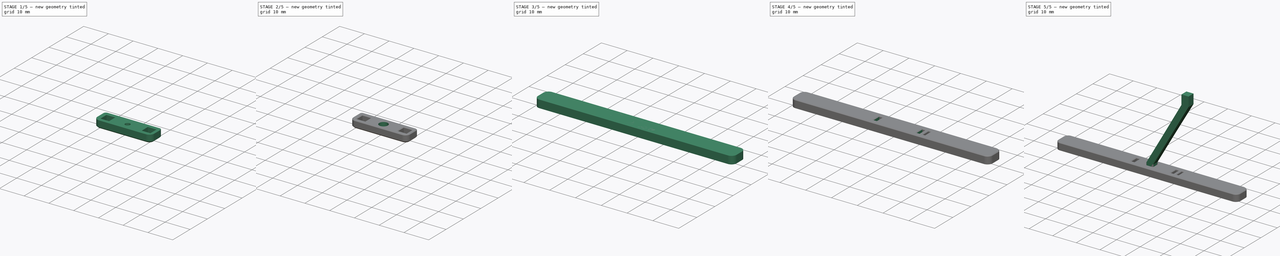
[diagram: build sequence overview — one tinted view per stage of 5, left to right]
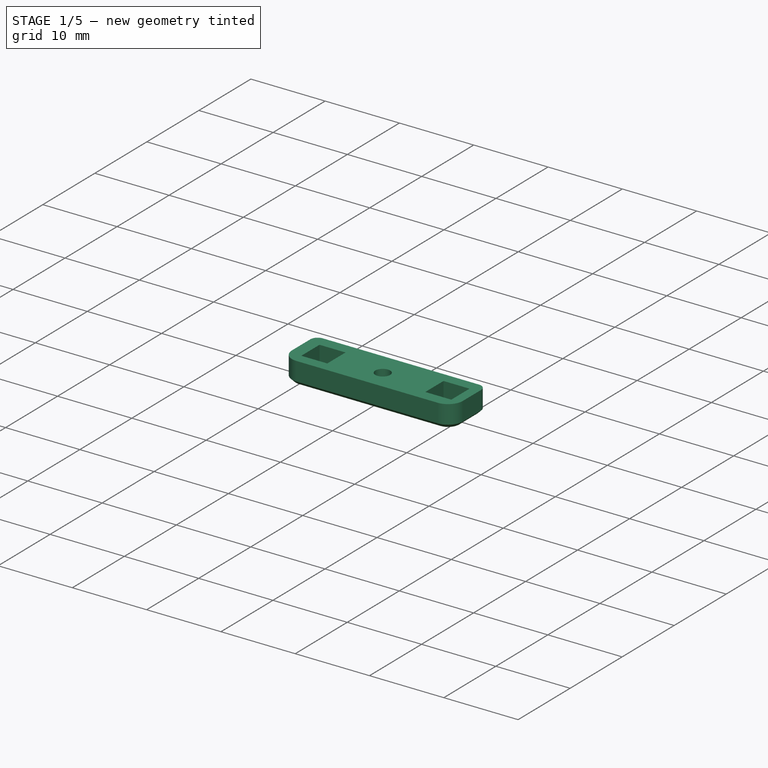
[diagram: stage 1 of 5 — iso view after this stage's code; geometry added in this stage tinted green]
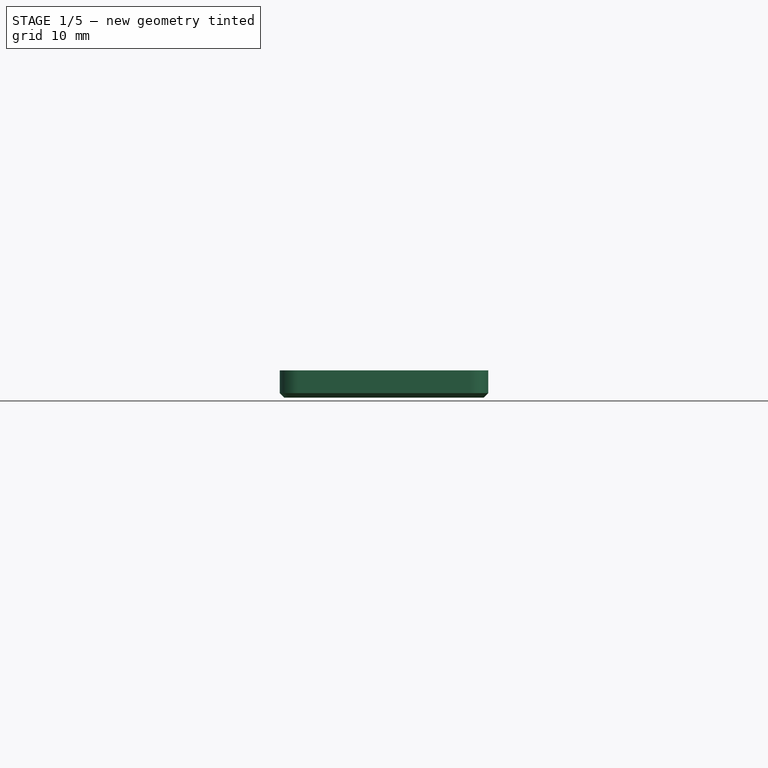
[diagram: stage 1 of 5 — front view after this stage's code; geometry added in this stage tinted green]
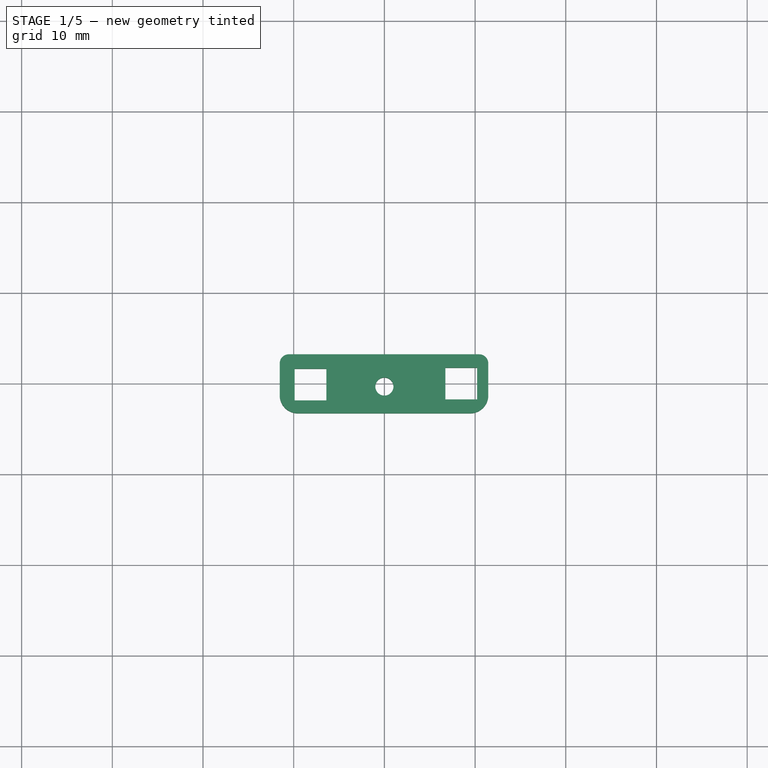
[diagram: stage 1 of 5 — top view after this stage's code; geometry added in this stage tinted green]
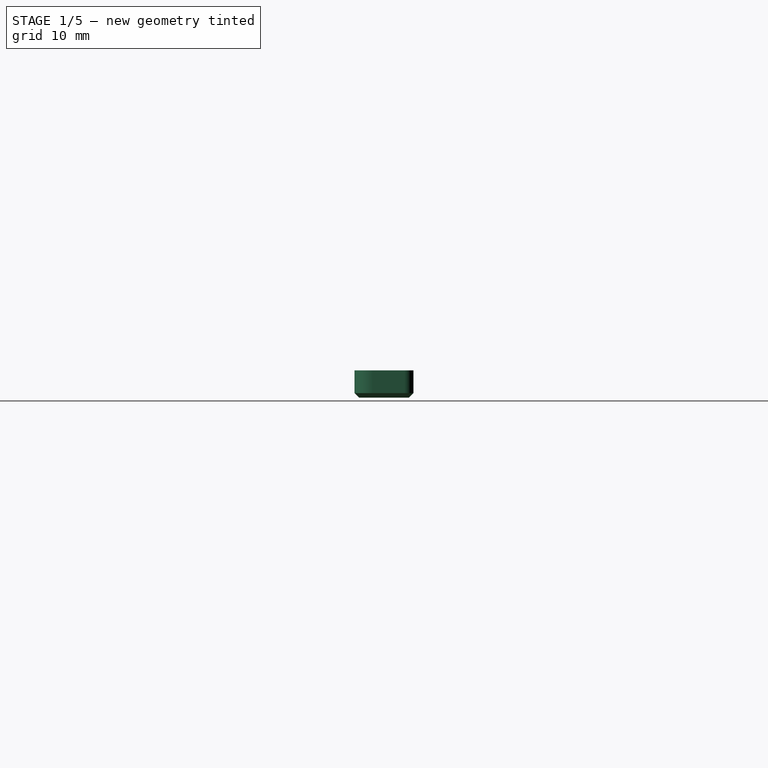
[diagram: stage 1 of 5 — right view after this stage's code; geometry added in this stage tinted green]
FCSTD DOCUMENT  (FreeCAD 0.19R23578 (Git))
Label: drone-landing-strut
License: All rights reserved
LicenseURL: http://en.wikipedia.org/wiki/All_rights_reserved
objects: PartDesign::Chamfer×10, Sketcher::SketchObject×8, PartDesign::Pad×4, PartDesign::Pocket×4, PartDesign::Body×3, PartDesign::Plane×2, App::MeasureDistance×2, PartDesign::AdditiveLoft×1
note: 51 computed .brp shape members not serialized (recipe doc carries the construction recipe); baked Part::Feature solids carry a one-line shape summary decoded from their .brp

FEATURE [PartDesign::Plane] DatumPlane
  AttachmentOffset = pos=(0,0,3) rot=(0,0,1;0rad)
  Length = 60
  MapMode = 5
  Placement = pos=(0,0,3) rot=(0,0,1;0rad)
  ResizeMode = 0
  Support = -> [XY_Plane]
  Width = 60
  expr: .Placement.Base.z = 0mm
  expr: .AttachmentOffset.Base.z = Pad.Length
FEATURE [Sketcher::SketchObject] Sketch005
  MapMode = 5
  Placement = pos=(0,0,3) rot=(0,0,1;0rad)
  Support = -> [DatumPlane]
  sketch-geometry (10):
    g0: LineSegment StartX=-9.89335 StartY=-1.85318 StartZ=0 EndX=-6.39335 EndY=-1.85318 EndZ=0
    g1: LineSegment StartX=-6.39335 StartY=-1.85318 StartZ=0 EndX=-6.39335 EndY=1.64682 EndZ=0
    g2: LineSegment StartX=-6.39335 StartY=1.64682 StartZ=0 EndX=-9.89335 EndY=1.64682 EndZ=0
    g3: LineSegment StartX=-9.89335 StartY=1.64682 StartZ=0 EndX=-9.89335 EndY=-1.85318 EndZ=0
    g4: LineSegment StartX=6.725 StartY=-1.75 StartZ=0 EndX=10.225 EndY=-1.75 EndZ=0
    g5: LineSegment StartX=10.225 StartY=-1.75 StartZ=0 EndX=10.225 EndY=1.75 EndZ=0
    g6: LineSegment StartX=10.225 StartY=1.75 StartZ=0 EndX=6.725 EndY=1.75 EndZ=0
    g7: LineSegment StartX=6.725 StartY=1.75 StartZ=0 EndX=6.725 EndY=-1.75 EndZ=0
    g8: GeomPoint X=-8.14335 Y=-0.103182 Z=0
    g9: GeomPoint X=8.475 Y=1e-16 Z=0
  constraints (23):
    c: Coincident(g0,g1)
    c: Coincident(g1,g2)
    c: Coincident(g2,g3)
    c: Coincident(g3,g0)
    c: Horizontal(g0)
    c: Horizontal(g2)
    c: Vertical(g1)
    c: Vertical(g3)
    c: Coincident(g4,g5)
    c: Coincident(g5,g6)
    c: Coincident(g6,g7)
    c: Coincident(g7,g4)
    c: Horizontal(g4)
    c: Horizontal(g6)
    c: Vertical(g5)
    c: Vertical(g7)
    c: DistanceX(g6,g6) = 3.5
    c: DistanceY(g7,g7) = 3.5
    c: DistanceY(g1,g1) = 3.5
    c: DistanceX(g2,g2) = 3.5
    c: PointOnObject(g9,g-1)
    c: Symmetric(g6,g4,g9)
    c: Symmetric(g2,g0,g8)
FEATURE [PartDesign::Pad] Pad
  Direction = (1,1,1)
  Length = 3
  Length2 = 100
  Profile = -> Sketch
  Type = 0
FEATURE [PartDesign::Chamfer] Chamfer
  Angle = 45
  Base = -> Pad [Edge6,Edge3,Edge17,Edge15,Edge12,Edge9]
  BaseFeature = -> Pad
  ChamferType = 0
  FlipDirection = false
  Size = 0.5
  Size2 = 1
  SupportTransform = false
FEATURE [PartDesign::Pocket] Pocket
  BaseFeature = -> Chamfer
  Length = 5
  Length2 = 100
  Profile = -> Sketch005
  Type = 1
FEATURE [Sketcher::SketchObject] Sketch003
  ExternalGeometry = -> [Sketch]
  MapMode = 5
  Placement = pos=(0,0,3) rot=(0,0,1;0rad)
  Support = -> [DatumPlane]
  expr: .AttachmentOffset.Base.z = 0
  sketch-geometry (2):
    g0: LineSegment StartX=-11.5 StartY=-0.324907 StartZ=0 EndX=11.5 EndY=-0.324907 EndZ=0
    g1: Circle CenterX=0 CenterY=-0.324907 CenterZ=0 NormalX=0 NormalY=0 NormalZ=1 AngleXU=0 Radius=1
  constraints (4):
    c: Horizontal(g0)
    c: PointOnObject(g1,g0)
    c: Radius(g1) = 1
    c: DistanceY(g0,g-3) = 3.55
FEATURE [PartDesign::Pocket] Pocket004
  BaseFeature = -> Pocket
  Length = 5
  Length2 = 100
  Profile = -> Sketch003
  Type = 1
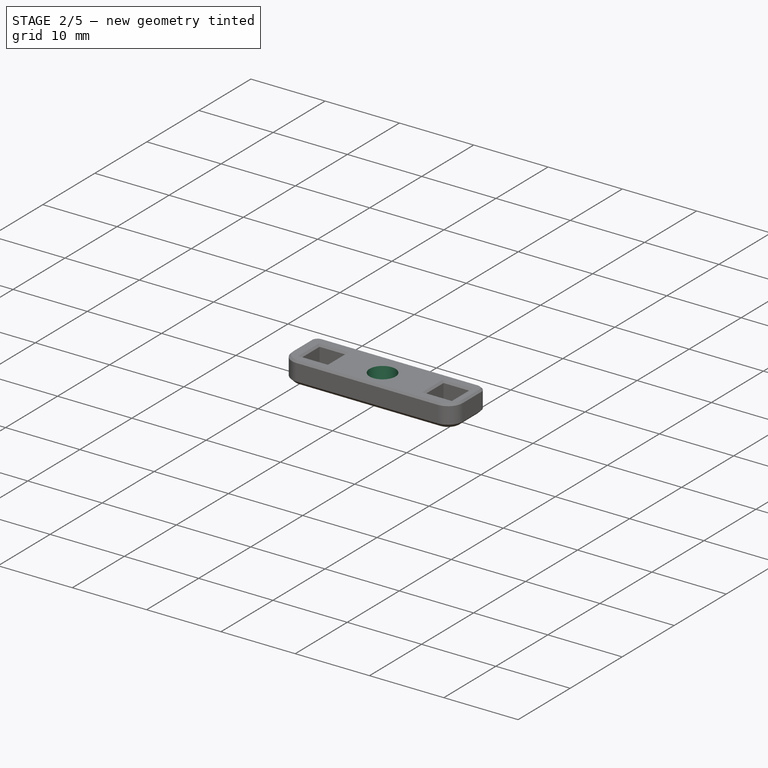
[diagram: stage 2 of 5 — iso view after this stage's code; geometry added in this stage tinted green]
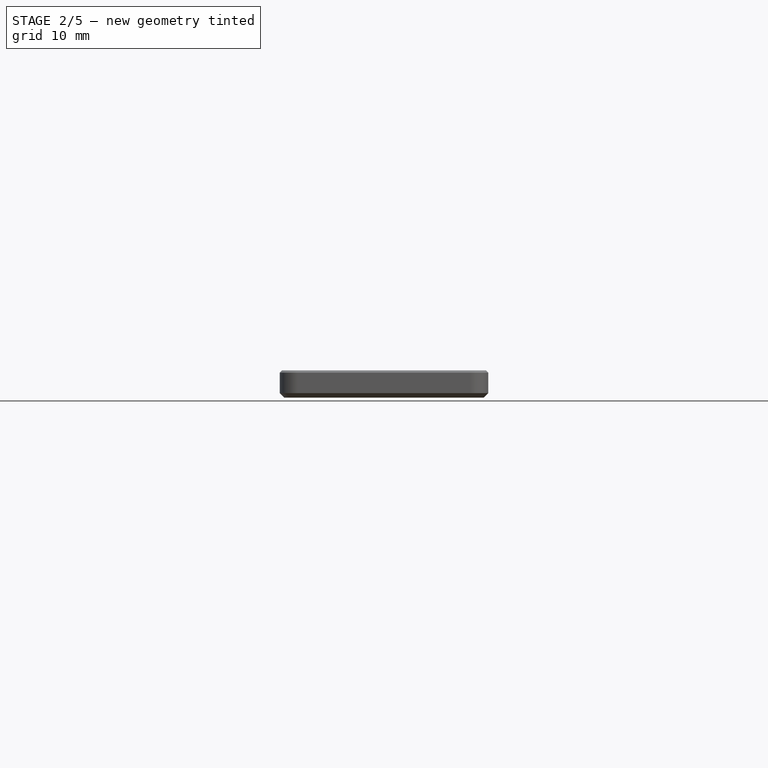
[diagram: stage 2 of 5 — front view after this stage's code; geometry added in this stage tinted green]
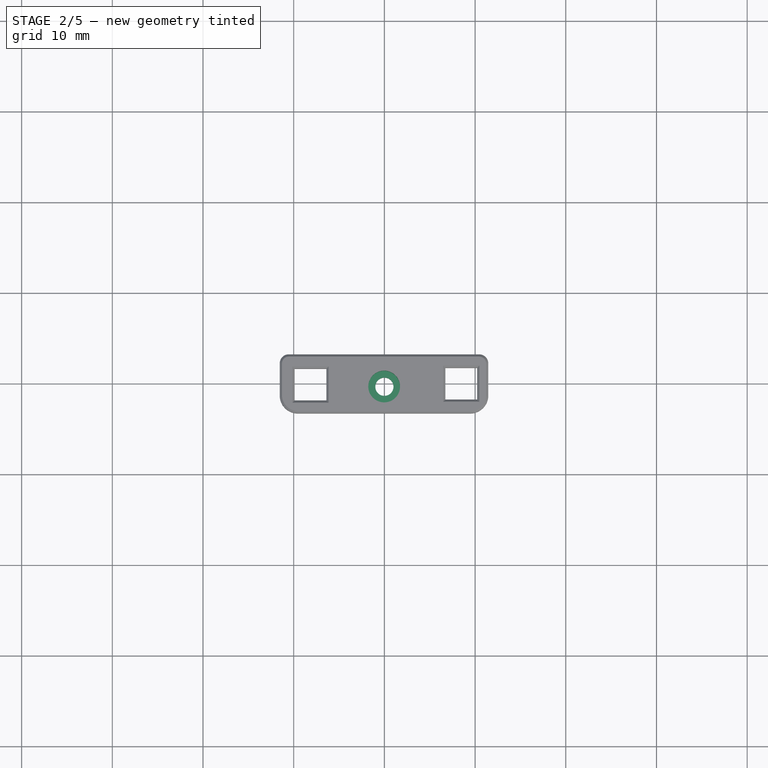
[diagram: stage 2 of 5 — top view after this stage's code; geometry added in this stage tinted green]
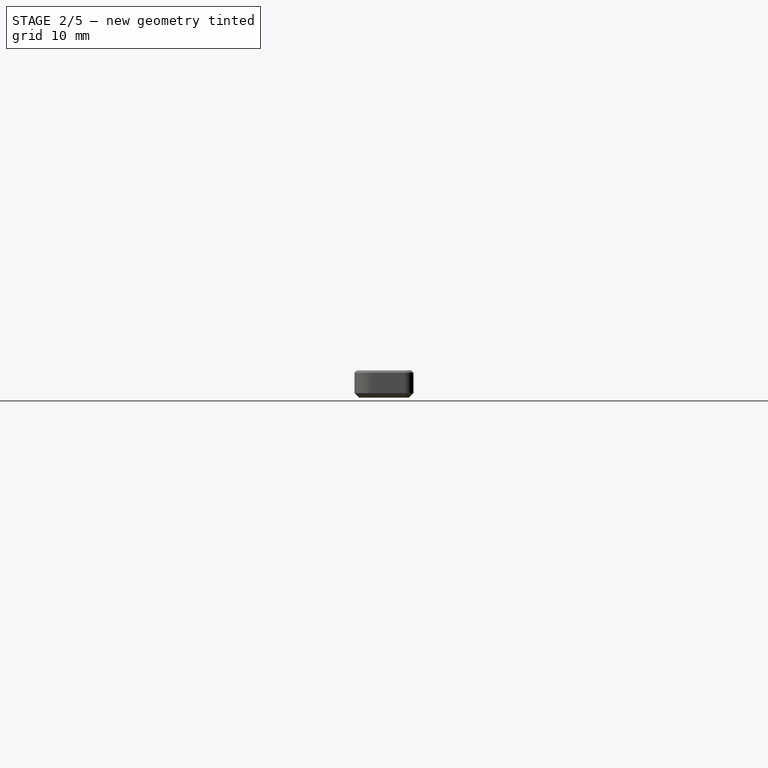
[diagram: stage 2 of 5 — right view after this stage's code; geometry added in this stage tinted green]
FEATURE [PartDesign::Chamfer] Chamfer005
  Angle = 45
  Base = -> Pocket004 [Edge15,Edge13,Edge11,Edge3,Edge6,Edge12,Edge14,Edge16]
  BaseFeature = -> Pocket004
  ChamferType = 0
  FlipDirection = false
  Size = 0.25
  Size2 = 1
  SupportTransform = false
FEATURE [PartDesign::Body] Body002
  Group = -> [Sketch008,Pad005,Sketch009,Pocket003,Chamfer001,Chamfer004,Chamfer007]
  Origin = -> Origin002
  Tip = -> Chamfer007
FEATURE [PartDesign::Chamfer] Chamfer008
  Angle = 45
  Base = -> Chamfer005 [Edge51,Edge52,Edge54,Edge53,Edge47,Edge49,Edge50,Edge48,Edge46]
  BaseFeature = -> Chamfer005
  ChamferType = 0
  FlipDirection = false
  Size = 0.25
  Size2 = 1
  SupportTransform = false
FEATURE [PartDesign::Chamfer] Chamfer009
  Angle = 45
  Base = -> Chamfer008 [Edge55,Edge53,Edge58,Edge59,Edge83,Edge82,Edge77,Edge79]
  BaseFeature = -> Chamfer008
  ChamferType = 0
  FlipDirection = false
  Size = 0.25
  Size2 = 1
  SupportTransform = false
FEATURE [Sketcher::SketchObject] Sketch010
  ExternalGeometry = -> [Chamfer009]
  MapMode = 5
  Placement = pos=(0,0,3) rot=(0,0,1;0rad)
  Support = -> [Chamfer009]
  sketch-geometry (2):
    g0: LineSegment StartX=-11.5439 StartY=-0.324907 StartZ=0 EndX=11.4561 EndY=-0.324907 EndZ=0
    g1: Circle CenterX=-0.025921 CenterY=-0.324907 CenterZ=0 NormalX=0 NormalY=0 NormalZ=1 AngleXU=0 Radius=1.75
  constraints (6):
    c: PointOnObject(g0,g-4)
    c: PointOnObject(g0,g-5)
    c: Horizontal(g0)
    c: DistanceY(g0,g-3) = 3.55
    c: PointOnObject(g1,g0)
    c: Radius(g1) = 1.75
FEATURE [PartDesign::Pocket] Pocket005
  BaseFeature = -> Chamfer009
  Length = 1.75
  Length2 = 100
  Profile = -> Sketch010
  Type = 0
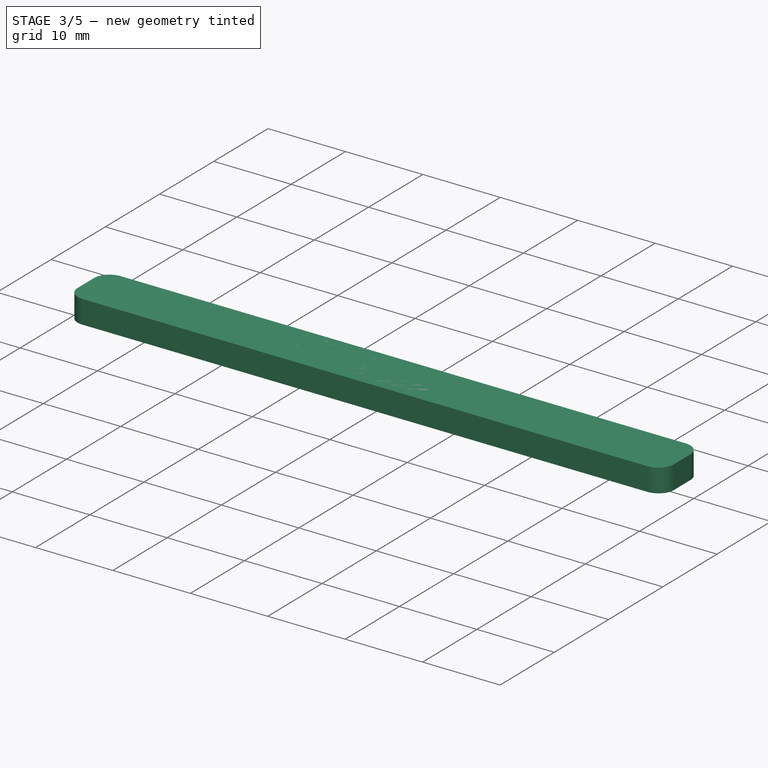
[diagram: stage 3 of 5 — iso view after this stage's code; geometry added in this stage tinted green]
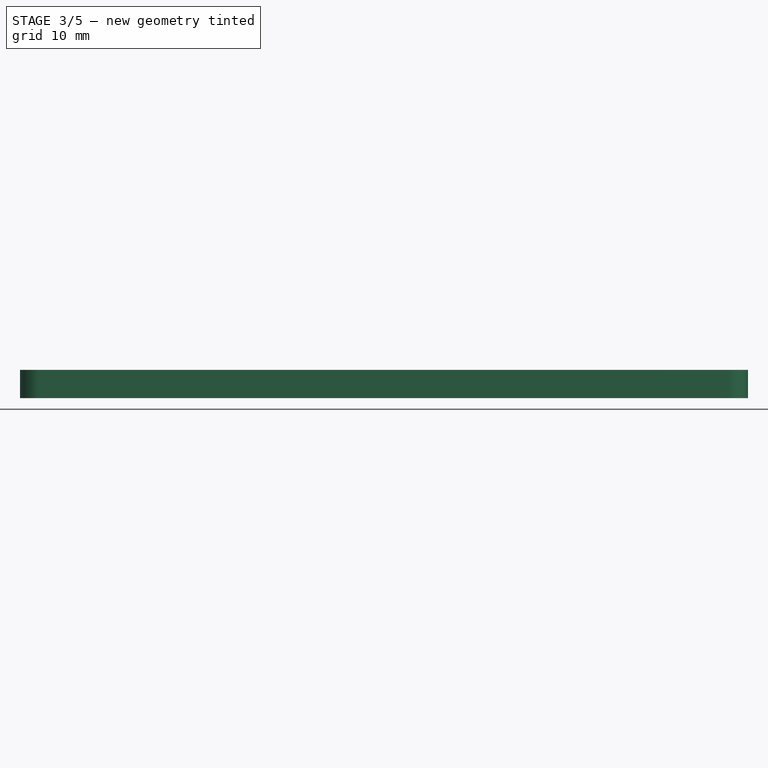
[diagram: stage 3 of 5 — front view after this stage's code; geometry added in this stage tinted green]
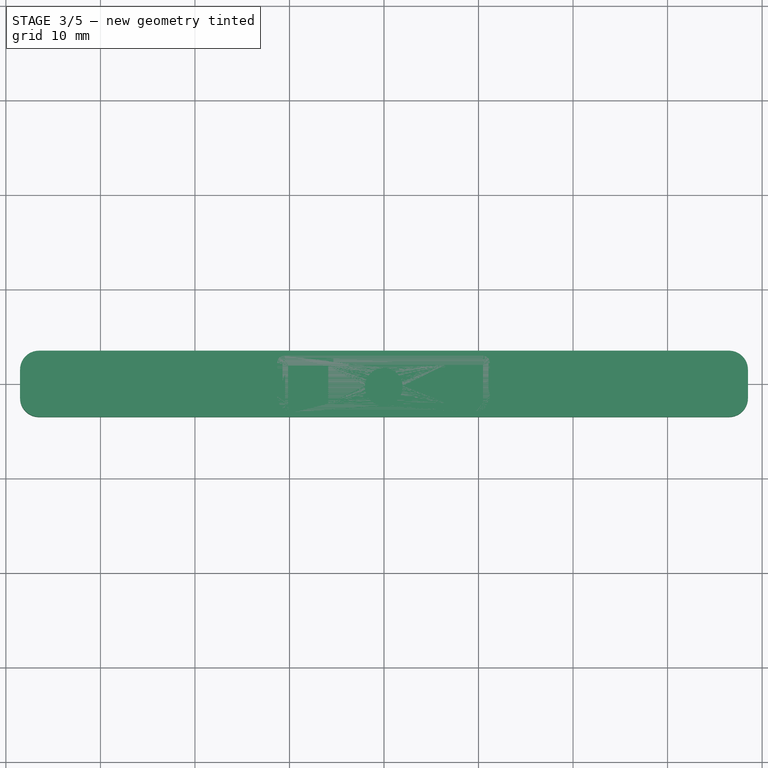
[diagram: stage 3 of 5 — top view after this stage's code; geometry added in this stage tinted green]
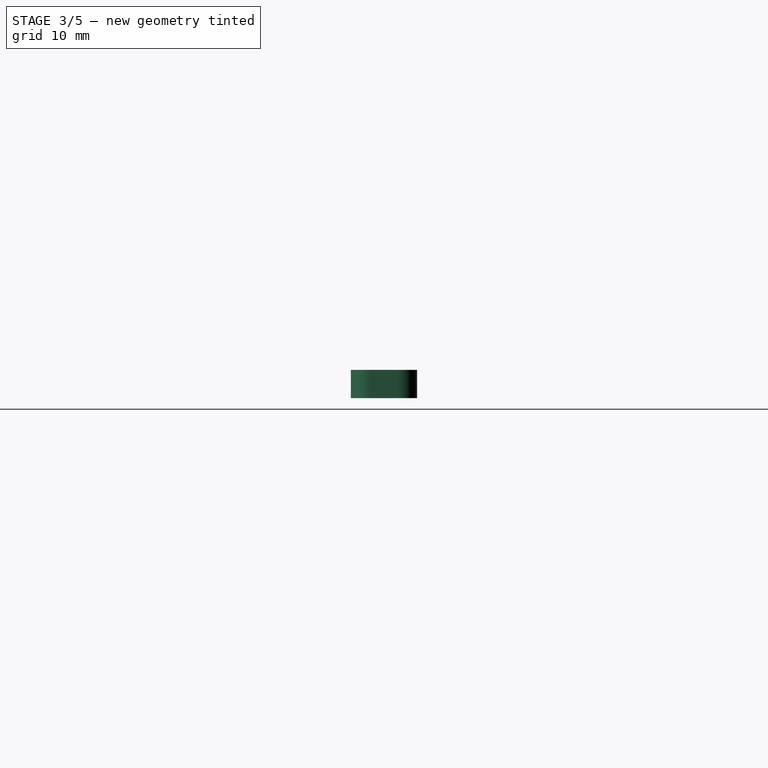
[diagram: stage 3 of 5 — right view after this stage's code; geometry added in this stage tinted green]
FEATURE [Sketcher::SketchObject] Sketch
  MapMode = 5
  Support = -> [XY_Plane]
  sketch-geometry (8):
    g0: LineSegment StartX=-9.54387 StartY=-3.27491 StartZ=0 EndX=9.45613 EndY=-3.27491 EndZ=0
    g1: LineSegment StartX=-11.5439 StartY=-1.27491 StartZ=0 EndX=-11.5439 EndY=2.22509 EndZ=0
    g2: LineSegment StartX=11.4561 StartY=-1.27491 StartZ=0 EndX=11.4561 EndY=2.22509 EndZ=0
    g3: LineSegment StartX=-10.5439 StartY=3.22509 StartZ=0 EndX=10.4561 EndY=3.22509 EndZ=0
    g4: ArcOfCircle CenterX=9.45613 CenterY=-1.27491 CenterZ=0 NormalX=0 NormalY=0 NormalZ=1 AngleXU=0 Radius=2 StartAngle=4.71239 EndAngle=6.28319
    g5: ArcOfCircle CenterX=-9.54387 CenterY=-1.27491 CenterZ=0 NormalX=0 NormalY=0 NormalZ=1 AngleXU=0 Radius=2 StartAngle=3.14159 EndAngle=4.71239
    g6: ArcOfCircle CenterX=-10.5439 CenterY=2.22509 CenterZ=0 NormalX=0 NormalY=0 NormalZ=1 AngleXU=0 Radius=1 StartAngle=1.5708 EndAngle=3.14159
    g7: ArcOfCircle CenterX=10.4561 CenterY=2.22509 CenterZ=0 NormalX=0 NormalY=0 NormalZ=1 AngleXU=0 Radius=1 StartAngle=0 EndAngle=1.5708
  constraints (18):
    c: Vertical(g1)
    c: Vertical(g2)
    c: Tangent(g2,g4) = -1.5708
    c: Tangent(g0,g4) = -1.5708
    c: Tangent(g1,g5) = 1.5708
    c: Tangent(g0,g5) = -1.5708
    c: Radius(g4) = 2
    c: Radius(g5) = 2
    c: Tangent(g3,g6) = 1.5708
    c: Tangent(g1,g6) = 1.5708
    c: Tangent(g3,g7) = 1.5708
    c: Tangent(g2,g7) = -1.5708
    c: Radius(g7) = 1
    c: Radius(g6) = 1
    c: Horizontal(g3)
    c: DistanceX(g1,g2) = 23
    c: DistanceY(g0,g3) = 6.5
    c: Horizontal(g0)
FEATURE [Sketcher::SketchObject] Sketch006
  MapMode = 5
  Support = -> [XY_Plane001]
  sketch-geometry (4):
    g0: LineSegment StartX=-1.5 StartY=1.5 StartZ=0 EndX=1.5 EndY=1.5 EndZ=0
    g1: LineSegment StartX=1.5 StartY=1.5 StartZ=0 EndX=1.5 EndY=-1.5 EndZ=0
    g2: LineSegment StartX=1.5 StartY=-1.5 StartZ=0 EndX=-1.5 EndY=-1.5 EndZ=0
    g3: LineSegment StartX=-1.5 StartY=-1.5 StartZ=0 EndX=-1.5 EndY=1.5 EndZ=0
  constraints (11):
    c: Coincident(g0,g1)
    c: Coincident(g1,g2)
    c: Coincident(g2,g3)
    c: Coincident(g3,g0)
    c: Horizontal(g0)
    c: Horizontal(g2)
    c: Vertical(g1)
    c: Vertical(g3)
    c: DistanceY(g1,g1) = 3
    c: DistanceX(g2,g2) = 3
    c: Symmetric(g0,g1,g-1)
FEATURE [PartDesign::Plane] DatumPlane003
  Length = 60
  MapMode = 2
  ResizeMode = 0
  Width = 60
FEATURE [Sketcher::SketchObject] Sketch007
  AttachmentOffset = pos=(0,0,30) rot=(0,0,1;0rad)
  MapMode = 5
  Placement = pos=(0,0,30) rot=(0,0,1;0rad)
  Support = -> [DatumPlane003]
  sketch-geometry (5):
    g0: LineSegment StartX=0 StartY=0 StartZ=0 EndX=15 EndY=0 EndZ=0
    g1: LineSegment StartX=13.5 StartY=1.5 StartZ=0 EndX=16.5 EndY=1.5 EndZ=0
    g2: LineSegment StartX=16.5 StartY=1.5 StartZ=0 EndX=16.5 EndY=-1.5 EndZ=0
    g3: LineSegment StartX=16.5 StartY=-1.5 StartZ=0 EndX=13.5 EndY=-1.5 EndZ=0
    g4: LineSegment StartX=13.5 StartY=-1.5 StartZ=0 EndX=13.5 EndY=1.5 EndZ=0
  constraints (14):
    c: Coincident(g0,g-1)
    c: PointOnObject(g0,g-1)
    c: DistanceX(g0,g0) = 15
    c: Coincident(g1,g2)
    c: Coincident(g2,g3)
    c: Coincident(g3,g4)
    c: Coincident(g4,g1)
    c: Horizontal(g1)
    c: Horizontal(g3)
    c: Vertical(g2)
    c: Vertical(g4)
    c: DistanceX(g3,g3) = 3
    c: DistanceY(g2,g2) = 3
    c: Symmetric(g1,g2,g0)
FEATURE [Sketcher::SketchObject] Sketch008
  MapMode = 5
  Support = -> [XY_Plane002]
  sketch-geometry (8):
    g0: LineSegment StartX=-36.5022 StartY=3.5 StartZ=0 EndX=36.5022 EndY=3.5 EndZ=0
    g1: LineSegment StartX=38.5022 StartY=1.5 StartZ=0 EndX=38.5022 EndY=-1.5 EndZ=0
    g2: LineSegment StartX=36.5022 StartY=-3.5 StartZ=0 EndX=-36.5022 EndY=-3.5 EndZ=0
    g3: LineSegment StartX=-38.5022 StartY=-1.5 StartZ=0 EndX=-38.5022 EndY=1.5 EndZ=0
    g4: ArcOfCircle CenterX=-36.5022 CenterY=1.5 CenterZ=0 NormalX=0 NormalY=0 NormalZ=1 AngleXU=0 Radius=2 StartAngle=1.5708 EndAngle=3.14159
    g5: ArcOfCircle CenterX=-36.5022 CenterY=-1.5 CenterZ=0 NormalX=0 NormalY=0 NormalZ=1 AngleXU=0 Radius=2 StartAngle=3.14159 EndAngle=4.71239
    g6: ArcOfCircle CenterX=36.5022 CenterY=1.5 CenterZ=0 NormalX=0 NormalY=0 NormalZ=1 AngleXU=0 Radius=2 StartAngle=0 EndAngle=1.5708
    g7: ArcOfCircle CenterX=36.5022 CenterY=-1.5 CenterZ=0 NormalX=0 NormalY=0 NormalZ=1 AngleXU=0 Radius=2 StartAngle=4.71239 EndAngle=6.28319
  constraints (18):
    c: Horizontal(g0)
    c: Horizontal(g2)
    c: Vertical(g1)
    c: Vertical(g3)
    c: Tangent(g0,g4) = 1.5708
    c: Tangent(g3,g4) = 1.5708
    c: Tangent(g3,g5) = 1.5708
    c: Tangent(g2,g5) = 1.5708
    c: Tangent(g0,g6) = 1.5708
    c: Tangent(g1,g6) = 1.5708
    c: Tangent(g1,g7) = 1.5708
    c: Tangent(g2,g7) = 1.5708
    c: Radius(g7) = 2
    c: Radius(g6) = 2
    c: Radius(g4) = 2
    c: Radius(g5) = 2
    c: DistanceY(g2,g0) = 7
    c: Symmetric(g0,g2,g-1)
FEATURE [PartDesign::Pad] Pad005
  Direction = (1,1,1)
  Length = 3
  Length2 = 100
  Profile = -> Sketch008
  Type = 0
FEATURE [PartDesign::Chamfer] Chamfer010
  Angle = 45
  Base = -> Pocket005 [Edge33]
  BaseFeature = -> Pocket005
  ChamferType = 0
  FlipDirection = false
  Size = 0.25
  Size2 = 1
  SupportTransform = false
FEATURE [PartDesign::Chamfer] Chamfer011
  Angle = 45
  Base = -> Chamfer010 [Edge15]
  BaseFeature = -> Chamfer010
  ChamferType = 0
  FlipDirection = false
  Size = 0.25
  Size2 = 1
  SupportTransform = false
FEATURE [PartDesign::Body] Body
  Group = -> [Sketch,DatumPlane,Sketch005,Pad,Chamfer,Pocket,Pocket004,Chamfer005,Chamfer008,Chamfer009,Sketch010,Pocket005,Chamfer010,Chamfer011]
  Origin = -> Origin
  Tip = -> Chamfer011
FEATURE [App::MeasureDistance] Distance  label="Distance: 3.56 mm"
  Distance = 3.55858
  P1 = (7.59381,-1.80778,2.80778)
  P2 = (7.54558,1.75,2.75)
FEATURE [App::MeasureDistance] Distance001  label="Distance: 3.31 mm"
  Distance = 3.31429
  P1 = (10.0113,-1.65,2.75)
  P2 = (10.3188,1.65,2.75)
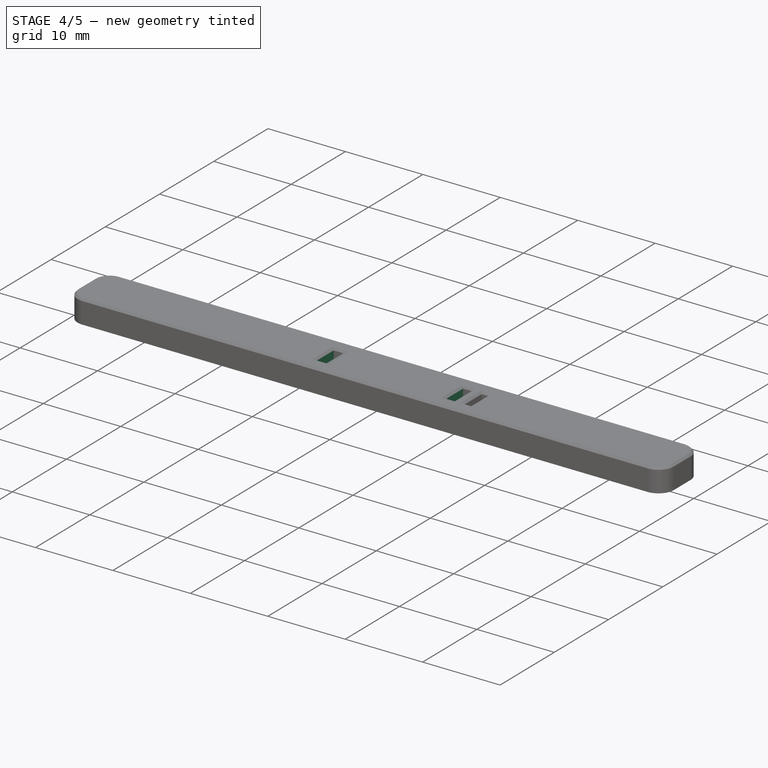
[diagram: stage 4 of 5 — iso view after this stage's code; geometry added in this stage tinted green]
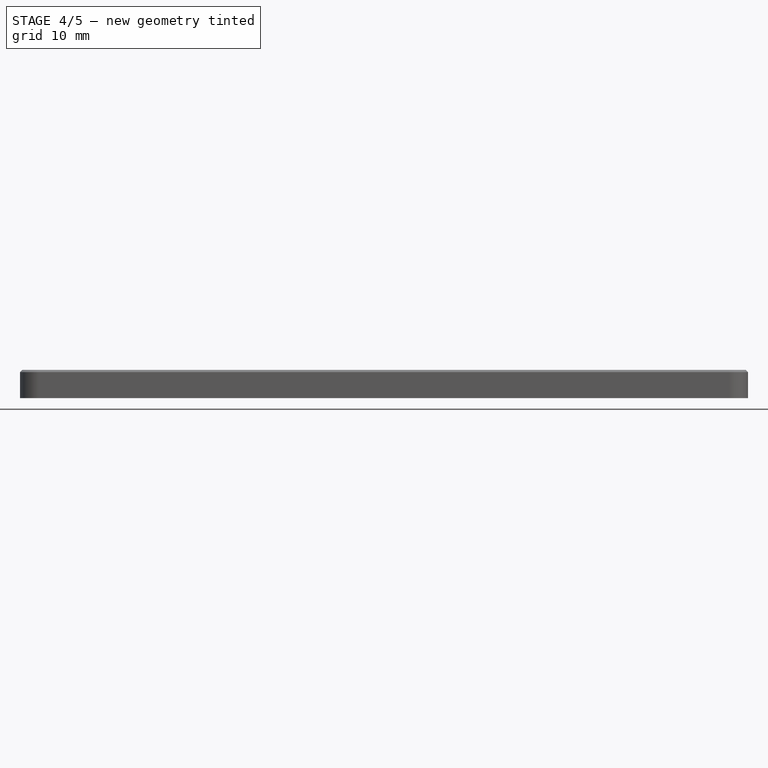
[diagram: stage 4 of 5 — front view after this stage's code; geometry added in this stage tinted green]
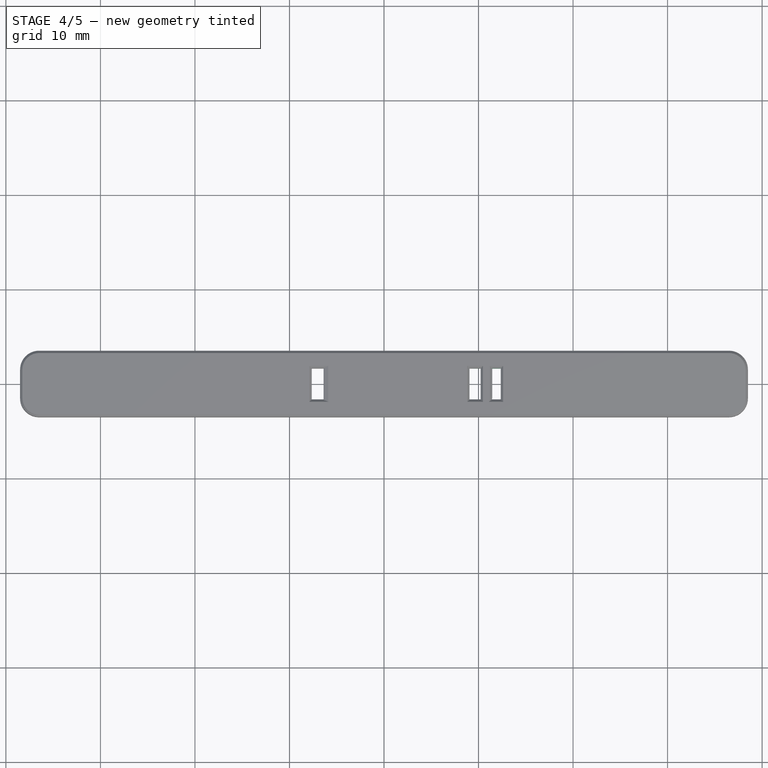
[diagram: stage 4 of 5 — top view after this stage's code; geometry added in this stage tinted green]
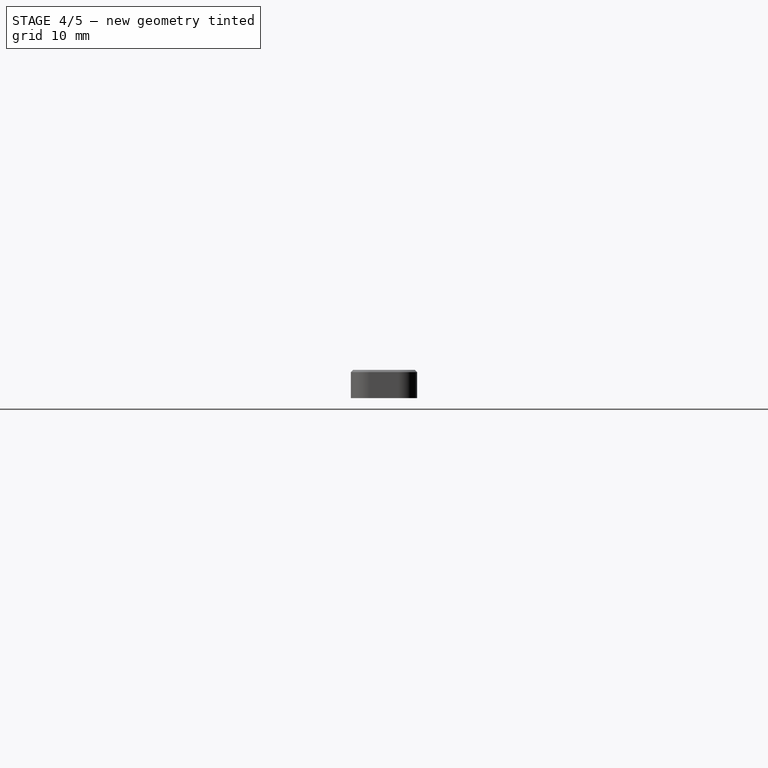
[diagram: stage 4 of 5 — right view after this stage's code; geometry added in this stage tinted green]
FEATURE [Sketcher::SketchObject] Sketch009
  MapMode = 5
  Placement = pos=(0,0,3) rot=(0,0,1;0rad)
  sketch-geometry (10):
    g0: LineSegment StartX=-7.65 StartY=1.65 StartZ=0 EndX=-4.35 EndY=1.65 EndZ=0
    g1: LineSegment StartX=-4.35 StartY=1.65 StartZ=0 EndX=-4.35 EndY=-1.65 EndZ=0
    g2: LineSegment StartX=-4.35 StartY=-1.65 StartZ=0 EndX=-7.65 EndY=-1.65 EndZ=0
    g3: LineSegment StartX=-7.65 StartY=-1.65 StartZ=0 EndX=-7.65 EndY=1.65 EndZ=0
    g4: LineSegment StartX=0 StartY=0 StartZ=0 EndX=-6 EndY=0 EndZ=0
    g5: LineSegment StartX=0 StartY=0 StartZ=0 EndX=10.7 EndY=0 EndZ=0
    g6: LineSegment StartX=9.05 StartY=1.65 StartZ=0 EndX=12.35 EndY=1.65 EndZ=0
    g7: LineSegment StartX=12.35 StartY=1.65 StartZ=0 EndX=12.35 EndY=-1.65 EndZ=0
    g8: LineSegment StartX=12.35 StartY=-1.65 StartZ=0 EndX=9.05 EndY=-1.65 EndZ=0
    g9: LineSegment StartX=9.05 StartY=-1.65 StartZ=0 EndX=9.05 EndY=1.65 EndZ=0
  constraints (28):
    c: Coincident(g0,g1)
    c: Coincident(g1,g2)
    c: Coincident(g2,g3)
    c: Coincident(g3,g0)
    c: Horizontal(g0)
    c: Horizontal(g2)
    c: Vertical(g1)
    c: Vertical(g3)
    c: DistanceX(g2,g2) = 3.3
    c: DistanceY(g1,g1) = 3.3
    c: Coincident(g4,g-1)
    c: PointOnObject(g4,g-1)
    c: DistanceX(g4,g4) = 6
    c: Coincident(g5,g-1)
    c: PointOnObject(g5,g-1)
    c: Symmetric(g0,g1,g4)
    c: Coincident(g6,g7)
    c: Coincident(g7,g8)
    c: Coincident(g8,g9)
    c: Coincident(g9,g6)
    c: Horizontal(g6)
    c: Horizontal(g8)
    c: Vertical(g7)
    c: Vertical(g9)
    c: DistanceY(g7,g7) = 3.3
    c: DistanceX(g8,g8) = 3.3
    c: Symmetric(g6,g7,g5)
    c: DistanceX(g5,g5) = 10.7
FEATURE [PartDesign::Pocket] Pocket003
  BaseFeature = -> Pad005
  Length = 5
  Length2 = 100
  Profile = -> Sketch009
  Type = 1
FEATURE [PartDesign::Chamfer] Chamfer001
  Angle = 45
  Base = -> Pocket003 [Edge24,Edge25]
  BaseFeature = -> Pocket003
  ChamferType = 0
  FlipDirection = false
  Size = 0.25
  Size2 = 1
  SupportTransform = false
FEATURE [PartDesign::Chamfer] Chamfer004
  Angle = 45
  Base = -> Chamfer001 [Edge23,Edge24,Edge21,Edge22,Edge19,Edge18,Edge17,Edge20]
  BaseFeature = -> Chamfer001
  ChamferType = 0
  FlipDirection = false
  Size = 0.25
  Size2 = 1
  SupportTransform = false
FEATURE [PartDesign::Body] Body001
  Group = -> [Sketch006,Pad003,DatumPlane003,Sketch007,Chamfer006,AdditiveLoft,Pad006]
  Origin = -> Origin001
  Tip = -> Pad006
FEATURE [PartDesign::Chamfer] Chamfer007
  Angle = 45
  Base = -> Chamfer004 [Edge74,Edge77,Edge80,Edge78,Edge56,Edge54,Edge50,Edge53]
  BaseFeature = -> Chamfer004
  ChamferType = 0
  FlipDirection = false
  Size = 0.25
  Size2 = 1
  SupportTransform = false
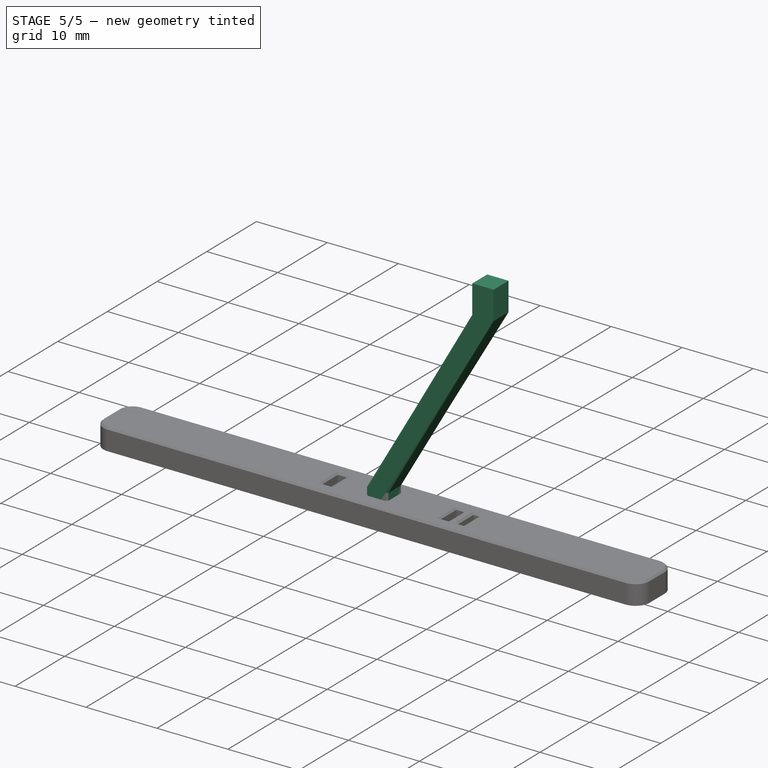
[diagram: stage 5 of 5 — iso view after this stage's code; geometry added in this stage tinted green]
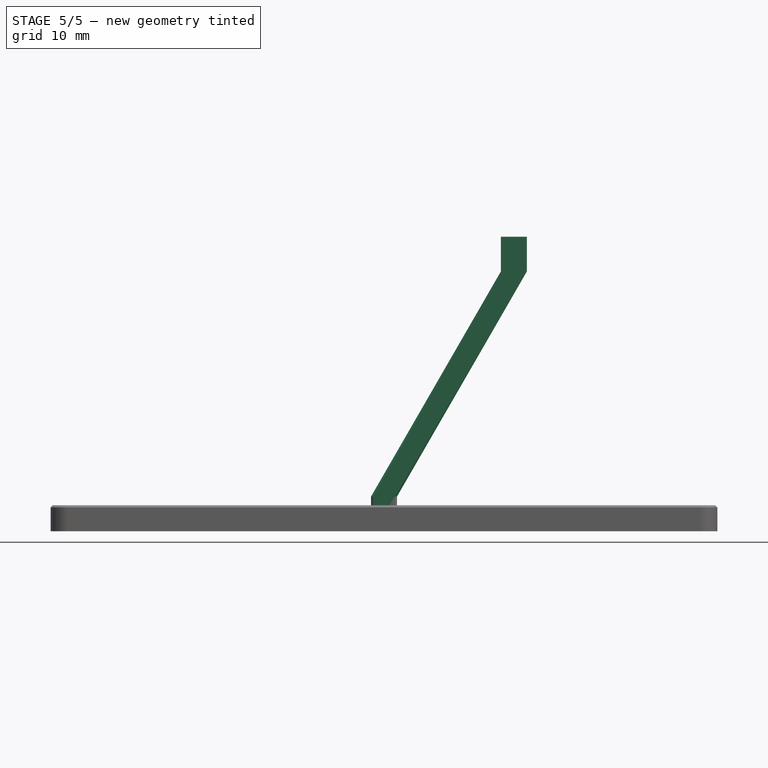
[diagram: stage 5 of 5 — front view after this stage's code; geometry added in this stage tinted green]
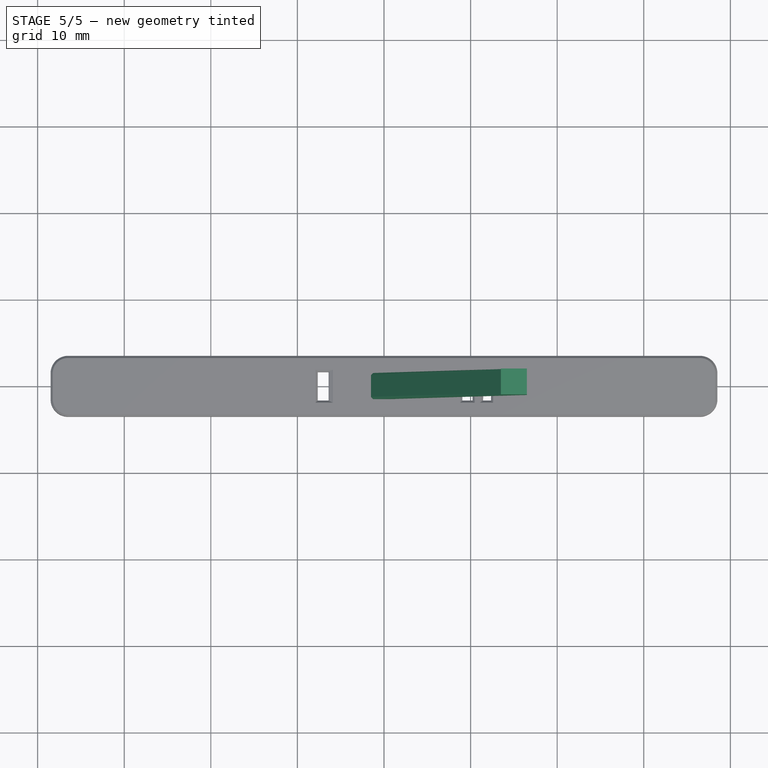
[diagram: stage 5 of 5 — top view after this stage's code; geometry added in this stage tinted green]
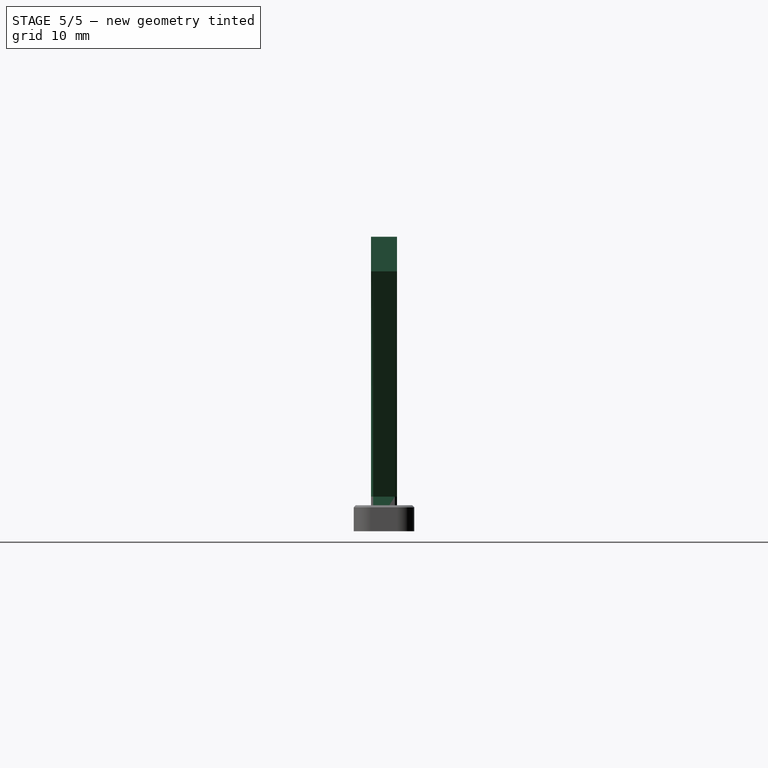
[diagram: stage 5 of 5 — right view after this stage's code; geometry added in this stage tinted green]
FEATURE [PartDesign::Pad] Pad003
  Direction = (1,1,1)
  Length = 4
  Length2 = 100
  Profile = -> Sketch006
  Type = 0
FEATURE [PartDesign::Chamfer] Chamfer006
  Angle = 45
  Base = -> Pad003 [Edge1,Edge8,Edge5,Edge2]
  BaseFeature = -> Pad003
  ChamferType = 0
  FlipDirection = false
  Size = 0.25
  Size2 = 1
  SupportTransform = false
FEATURE [PartDesign::AdditiveLoft] AdditiveLoft
  BaseFeature = -> Chamfer006
  Closed = false
  Profile = -> Chamfer006 [Face5]
  Ruled = false
  Sections = -> [Sketch007]
FEATURE [PartDesign::Pad] Pad006
  BaseFeature = -> AdditiveLoft
  Direction = (1,1,1)
  Length = 4
  Length2 = 100
  Profile = -> AdditiveLoft [Face15]
  Type = 0
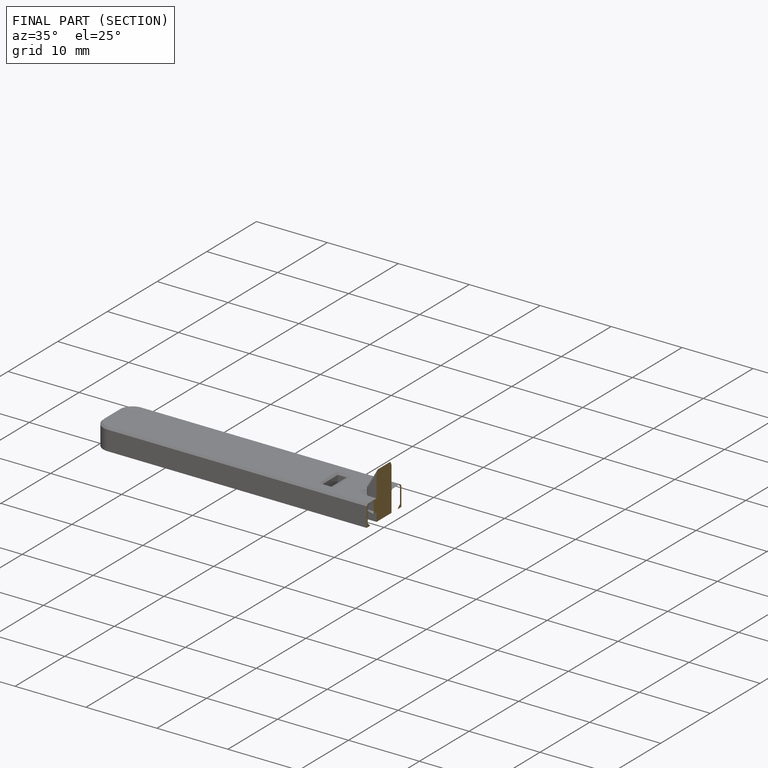
[diagram: finished part — half-section view (interior)]
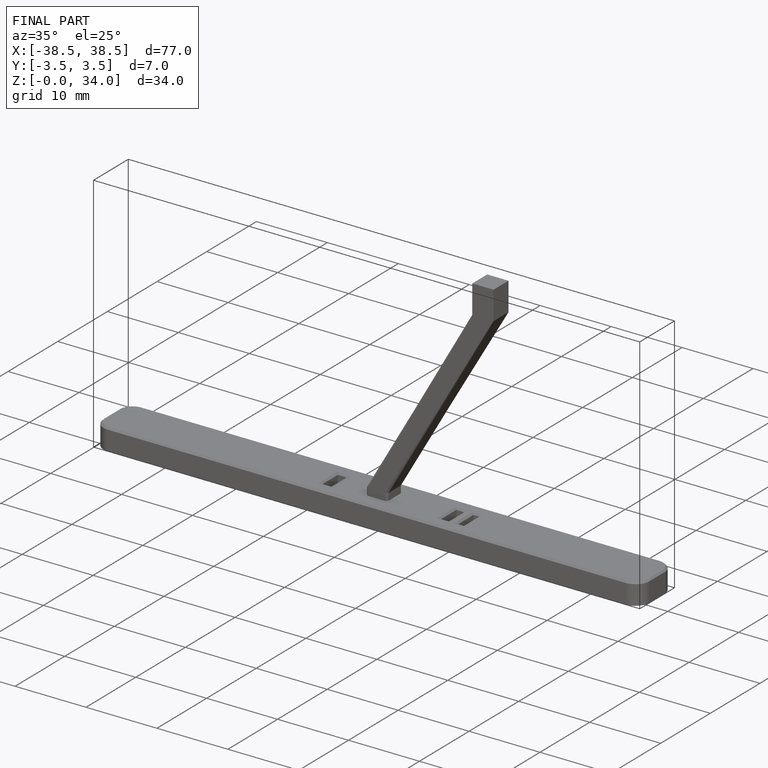
[diagram: finished part — iso view with bounding-box wireframe]
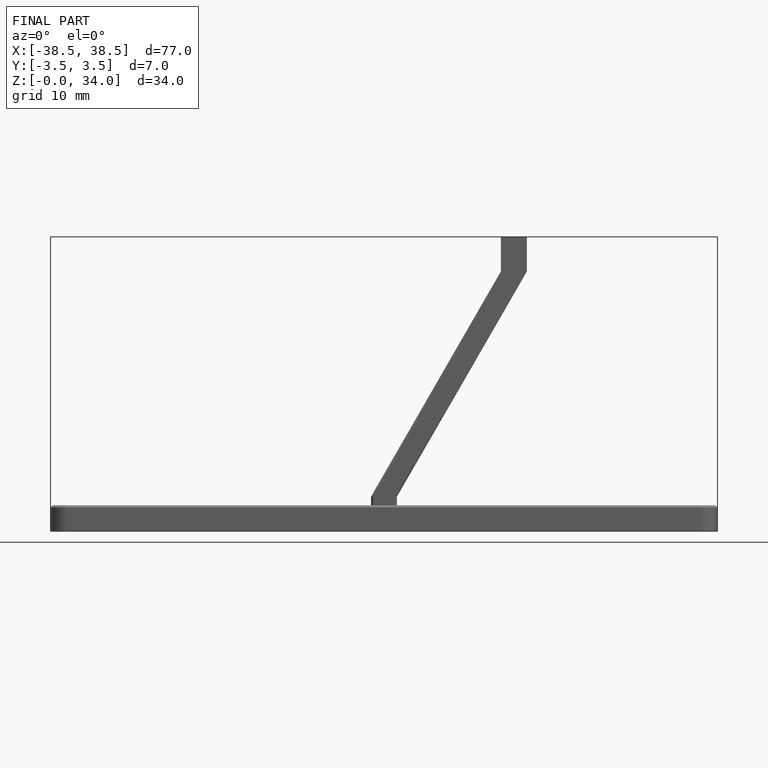
[diagram: finished part — front view with bounding-box wireframe]
